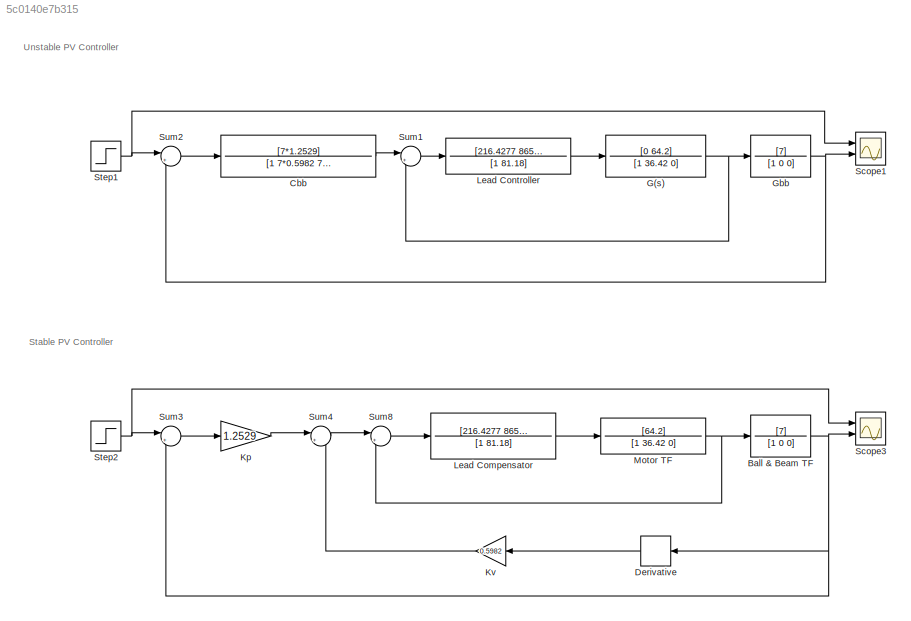
MODEL slx_5c0140e7b315
KIND model
CONFIG AbsTol = auto
CONFIG EnableMultiTasking = off
CONFIG FixedStep = auto
CONFIG MaxStep = auto
CONFIG MinStep = auto
CONFIG RelTol = 1e-3
CONFIG SampleTimeConstraint = Unconstrained
CONFIG SolverName = VariableStepAuto
CONFIG StartTime = 0.0
CONFIG StopTime = 10
BLOCK [TransferFcn] Ball & Beam TF
  Denominator = [1 0 0]
  Numerator = [7]
BLOCK [TransferFcn] Cbb
  Denominator = [1 7*0.5982 7*1.2529]
  Numerator = [7*1.2529]
BLOCK [Derivative] Derivative
  CoefficientInTFapproximation = 0
  NameLocation = top
BLOCK [TransferFcn] G(s)
  Denominator = [1 36.42 0]
  Numerator = [0 64.2]
BLOCK [TransferFcn] Gbb
  Denominator = [1 0 0]
  Numerator = [7]
BLOCK [Gain] Kp
  Gain = 1.2529
BLOCK [Gain] Kv
  Gain = 0.5982
  NameLocation = top
BLOCK [TransferFcn] Lead Compensator
  Denominator = [1 81.18]
  Numerator = [216.4277 8657.108]
BLOCK [TransferFcn] Lead Controller
  Denominator = [1 81.18]
  Numerator = [216.4277 8657.108]
BLOCK [TransferFcn] Motor TF
  Denominator = [1 36.42 0]
  Numerator = [64.2]
BLOCK [Scope] Scope1
  Floating = off
  NumInputPorts = 2
  Ports = [2]
  ScopeSpecificationString = Simulink.scopes.TimeScopeBlockCfg('CurrentConfiguration', extmgr.ConfigurationSet(extmgr.Configuration('Core','General UI',true,'FigureColor',[1 1 1]),extmgr.Configuration('Core','Source UI',true),extmgr.Configuration('Sources','WiredSimulink',true),extmgr.Configuration('Visuals','Time Domain',true,'SerializedDisplays',{struct('MinYLimReal','-3790.84549','MaxYLimReal','1800.27814','YLabelReal','',...<+1709ch>
BLOCK [Scope] Scope3
  Floating = off
  NumInputPorts = 2
  Ports = [2]
  ScopeSpecificationString = Simulink.scopes.TimeScopeBlockCfg('CurrentConfiguration', extmgr.ConfigurationSet(extmgr.Configuration('Core','General UI',true,'FigureColor',[1 1 1]),extmgr.Configuration('Core','Source UI',true),extmgr.Configuration('Sources','WiredSimulink',true,'DataLoggingVariableName','ScopeData3'),extmgr.Configuration('Visuals','Time Domain',true,'SerializedDisplays',{struct('MinYLimReal','-0.13007','MaxYLi...<+1724ch>
BLOCK [Step] Step1
  SampleTime = 0
  Time = 0
BLOCK [Step] Step2
  SampleTime = 0
  Time = 0
BLOCK [Sum] Sum1
  Inputs = |+-
  Ports = [2, 1]
BLOCK [Sum] Sum2
  Inputs = |+-
  Ports = [2, 1]
BLOCK [Sum] Sum3
  Inputs = |+-
  Ports = [2, 1]
BLOCK [Sum] Sum4
  Inputs = |+-
  Ports = [2, 1]
BLOCK [Sum] Sum8
  Inputs = |+-
  Ports = [2, 1]
ANNOTATION (root): Stable PV Controller
ANNOTATION (root): Unstable PV Controller
NET Ball & Beam TF:1 -> Derivative:1, Scope3:2, Sum3:2
LINE Cbb:1 -> Sum1:1
LINE Derivative:1 -> Kv:1
NET G(s):1 -> Gbb:1, Sum1:2
NET Gbb:1 -> Scope1:2, Sum2:2
LINE Kp:1 -> Sum4:1
LINE Kv:1 -> Sum4:2
LINE Lead Compensator:1 -> Motor TF:1
LINE Lead Controller:1 -> G(s):1
NET Motor TF:1 -> Ball & Beam TF:1, Sum8:2
NET Step1:1 -> Scope1:1, Sum2:1
NET Step2:1 -> Scope3:1, Sum3:1
LINE Sum1:1 -> Lead Controller:1
LINE Sum2:1 -> Cbb:1
LINE Sum3:1 -> Kp:1
LINE Sum4:1 -> Sum8:1
LINE Sum8:1 -> Lead Compensator:1
note: NET lines group one-source signal fan-out (src -> all destinations, sorted); 1:1 wires keep LINE
